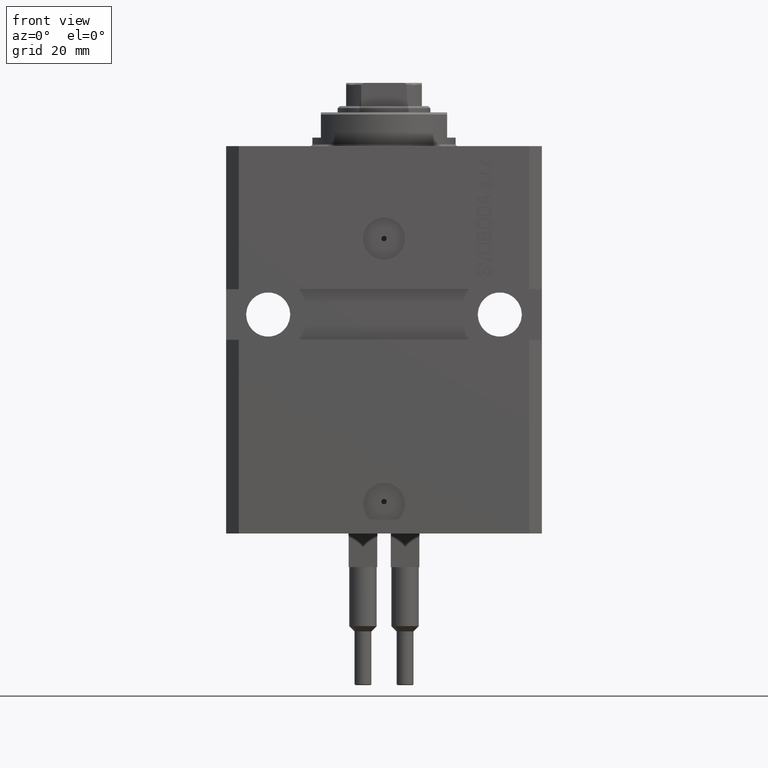
[diagram: clean part render]
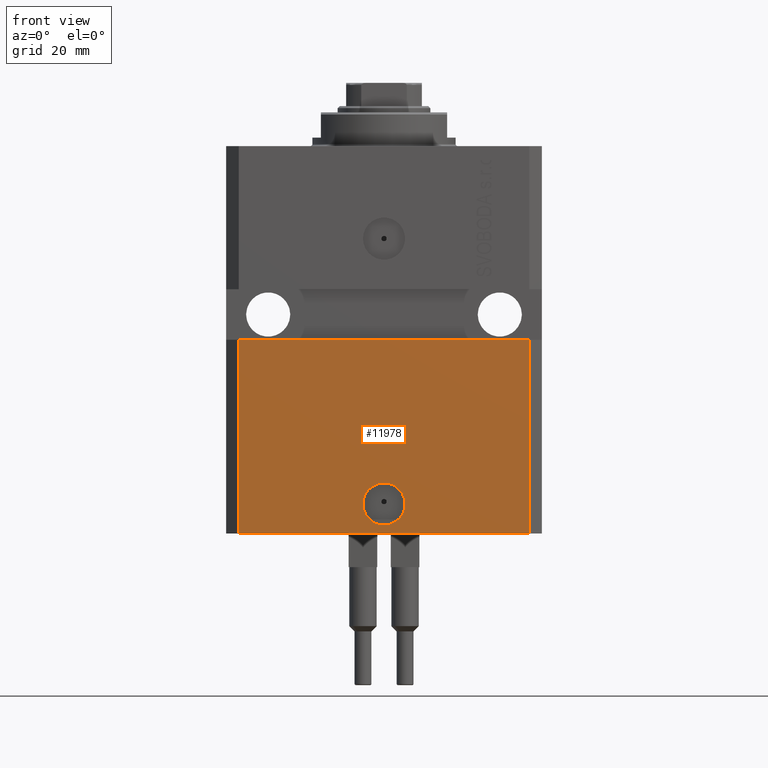
[diagram: same view with one face highlighted and labeled with its STEP entity id]
A machine part, front view. The second image highlights one B-rep face of the part: STEP entity #11978.
In plain terms, the highlighted planar face has unit normal (0, -1, 0).
Its self-contained STEP definition (entity closure, byte-faithful):
#660 = EDGE_LOOP ( 'NONE', ( #2839, #10676, #9049, #11253 ) ) ;
#725 = CARTESIAN_POINT ( 'NONE',  ( -34.49999999999998579, -27.49999999999999645, -92.00000000000000000 ) ) ;
#951 = CARTESIAN_POINT ( 'NONE',  ( -34.49999999999998579, -27.50000000000000000, -46.00000000000000000 ) ) ;
#2189 = AXIS2_PLACEMENT_3D ( 'NONE', #27012, #37721, #34550 ) ;
#2839 = ORIENTED_EDGE ( 'NONE', *, *, #20482, .F. ) ;
#3037 = EDGE_CURVE ( 'NONE', #38444, #9588, #12571, .T. ) ;
#4253 = EDGE_LOOP ( 'NONE', ( #17637, #43857 ) ) ;
#4616 = DIRECTION ( 'NONE',  ( 0.000000000000000000, -1.000000000000000000, 0.000000000000000000 ) ) ;
#5274 = DIRECTION ( 'NONE',  ( 0.000000000000000000, 0.000000000000000000, 1.000000000000000000 ) ) ;
#9049 = ORIENTED_EDGE ( 'NONE', *, *, #26105, .T. ) ;
#9161 = LINE ( 'NONE', #35458, #43340 ) ;
#9588 = VERTEX_POINT ( 'NONE', #35319 ) ;
#10599 = DIRECTION ( 'NONE',  ( 1.000000000000000000, 0.000000000000000000, 0.000000000000000000 ) ) ;
#10676 = ORIENTED_EDGE ( 'NONE', *, *, #28624, .F. ) ;
#11253 = ORIENTED_EDGE ( 'NONE', *, *, #3037, .T. ) ;
#11978 = ADVANCED_FACE ( 'NONE', ( #25330, #40189 ), #30218, .T. ) ;
#12181 = CARTESIAN_POINT ( 'NONE',  ( -34.49999999999998579, -27.49999999999999645, -92.00000000000000000 ) ) ;
#12571 = LINE ( 'NONE', #27447, #24278 ) ;
#12734 = CARTESIAN_POINT ( 'NONE',  ( 0.000000000000000000, -27.49999999999999645, -84.99999999999998579 ) ) ;
#15343 = DIRECTION ( 'NONE',  ( 0.000000000000000000, -0.000000000000000000, -1.000000000000000000 ) ) ;
#15626 = VECTOR ( 'NONE', #47367, 1000.000000000000000 ) ;
#16769 = CARTESIAN_POINT ( 'NONE',  ( 5.000000000000006217, -27.49999999999999645, -84.99999999999998579 ) ) ;
#17637 = ORIENTED_EDGE ( 'NONE', *, *, #24675, .F. ) ;
#17772 = AXIS2_PLACEMENT_3D ( 'NONE', #12734, #46358, #45878 ) ;
#19237 = EDGE_CURVE ( 'NONE', #37771, #36222, #41063, .T. ) ;
#20482 = EDGE_CURVE ( 'NONE', #30842, #9588, #9161, .T. ) ;
#24278 = VECTOR ( 'NONE', #5274, 1000.000000000000000 ) ;
#24675 = EDGE_CURVE ( 'NONE', #36222, #37771, #40352, .T. ) ;
#25330 = FACE_BOUND ( 'NONE', #4253, .T. ) ;
#25698 = LINE ( 'NONE', #44967, #26424 ) ;
#26105 = EDGE_CURVE ( 'NONE', #33142, #38444, #25698, .T. ) ;
#26424 = VECTOR ( 'NONE', #10599, 1000.000000000000000 ) ;
#26539 = CARTESIAN_POINT ( 'NONE',  ( 34.49999999999999289, -27.49999999999999645, -92.00000000000000000 ) ) ;
#26775 = CARTESIAN_POINT ( 'NONE',  ( -5.000000000000006217, -27.49999999999999645, -84.99999999999998579 ) ) ;
#27012 = CARTESIAN_POINT ( 'NONE',  ( 0.000000000000000000, -27.49999999999999645, -84.99999999999998579 ) ) ;
#27447 = CARTESIAN_POINT ( 'NONE',  ( 34.49999999999999289, -27.49999999999999645, -92.00000000000000000 ) ) ;
#28624 = EDGE_CURVE ( 'NONE', #33142, #30842, #32276, .T. ) ;
#29097 = DIRECTION ( 'NONE',  ( 1.000000000000000000, 9.251858538542972814E-17, 0.000000000000000000 ) ) ;
#30218 = PLANE ( 'NONE',  #37702 ) ;
#30842 = VERTEX_POINT ( 'NONE', #951 ) ;
#32276 = LINE ( 'NONE', #32508, #15626 ) ;
#32508 = CARTESIAN_POINT ( 'NONE',  ( -34.49999999999998579, -27.49999999999999645, -92.00000000000000000 ) ) ;
#33142 = VERTEX_POINT ( 'NONE', #12181 ) ;
#34550 = DIRECTION ( 'NONE',  ( 1.000000000000000000, 0.000000000000000000, 0.000000000000000000 ) ) ;
#35319 = CARTESIAN_POINT ( 'NONE',  ( 34.49999999999999289, -27.49999999999999289, -46.00000000000000000 ) ) ;
#35458 = CARTESIAN_POINT ( 'NONE',  ( -37.50000000000000000, -27.50000000000000000, -46.00000000000000000 ) ) ;
#36222 = VERTEX_POINT ( 'NONE', #16769 ) ;
#37702 = AXIS2_PLACEMENT_3D ( 'NONE', #725, #4616, #15343 ) ;
#37721 = DIRECTION ( 'NONE',  ( 1.176083712526788232E-16, -1.000000000000000000, 0.000000000000000000 ) ) ;
#37771 = VERTEX_POINT ( 'NONE', #26775 ) ;
#38444 = VERTEX_POINT ( 'NONE', #26539 ) ;
#40189 = FACE_OUTER_BOUND ( 'NONE', #660, .T. ) ;
#40352 = CIRCLE ( 'NONE', #17772, 5.000000000000006217 ) ;
#41063 = CIRCLE ( 'NONE', #2189, 5.000000000000006217 ) ;
#43340 = VECTOR ( 'NONE', #29097, 1000.000000000000000 ) ;
#43857 = ORIENTED_EDGE ( 'NONE', *, *, #19237, .F. ) ;
#44967 = CARTESIAN_POINT ( 'NONE',  ( -34.49999999999998579, -27.49999999999999645, -92.00000000000000000 ) ) ;
#45878 = DIRECTION ( 'NONE',  ( 1.000000000000000000, 0.000000000000000000, 0.000000000000000000 ) ) ;
#46358 = DIRECTION ( 'NONE',  ( 1.176083712526788232E-16, -1.000000000000000000, 0.000000000000000000 ) ) ;
#47367 = DIRECTION ( 'NONE',  ( 0.000000000000000000, 0.000000000000000000, 1.000000000000000000 ) ) ;